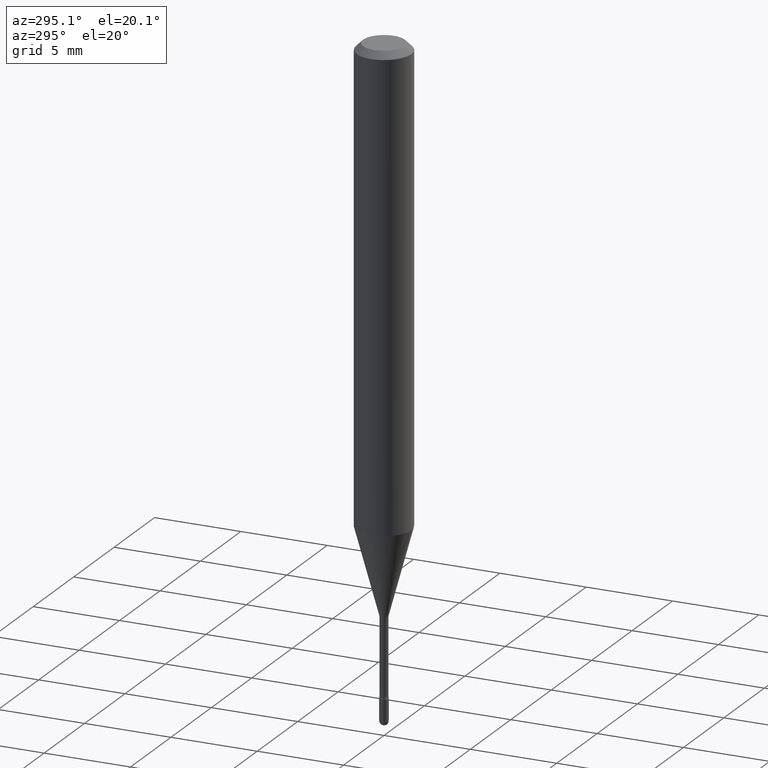
[diagram: clean part render]
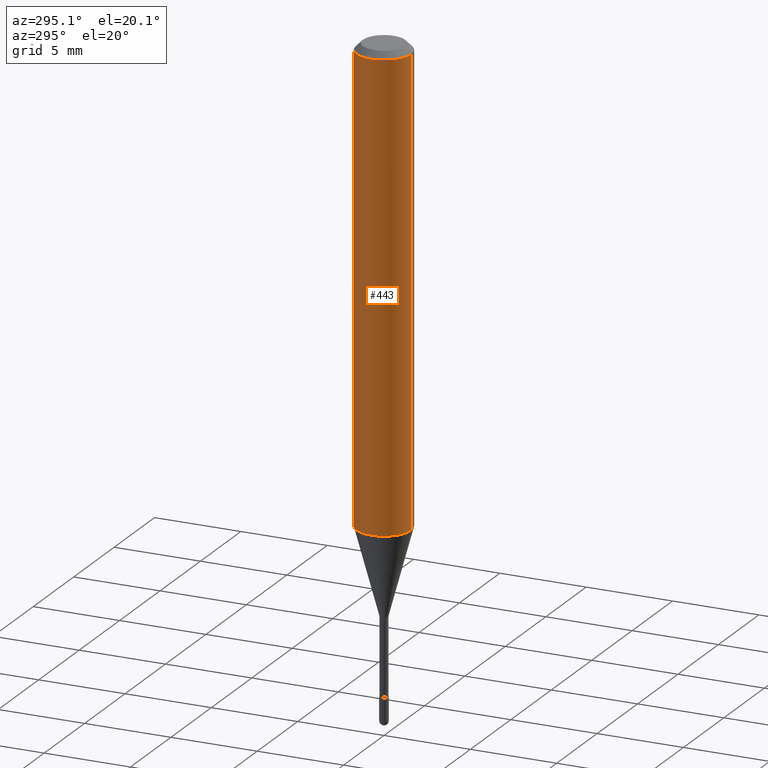
[diagram: same view with one face highlighted and labeled with its STEP entity id]
A machine part, auxiliary view. The second image highlights one B-rep face of the part: STEP entity #443.
In plain terms, the highlighted cylindrical surface (edge-blend (fillet) strip) has radius 1.5875 mm, axis along (-0, 0, 1).
Its self-contained STEP definition (entity closure, byte-faithful):
#2 = CARTESIAN_POINT ( 'NONE',  ( 3.668069088968971079E-31, -5.237414076180536874E-17, -0.01500000000000008271 ) ) ;
#13 = LINE ( 'NONE', #531, #25 ) ;
#25 = VECTOR ( 'NONE', #142, 39.37007874015748143 ) ;
#33 = VECTOR ( 'NONE', #35, 39.37007874015748143 ) ;
#35 = DIRECTION ( 'NONE',  ( -2.445379392645967337E-29, 3.491609384120338901E-15, 1.000000000000000000 ) ) ;
#37 = VERTEX_POINT ( 'NONE', #133 ) ;
#51 = DIRECTION ( 'NONE',  ( -6.982962677686265922E-15, -1.000000000000000000, 4.370956789862821150E-15 ) ) ;
#54 = EDGE_CURVE ( 'NONE', #560, #269, #368, .T. ) ;
#72 = CIRCLE ( 'NONE', #162, 0.06250000000000000000 ) ;
#85 = AXIS2_PLACEMENT_3D ( 'NONE', #378, #479, #51 ) ;
#117 = ORIENTED_EDGE ( 'NONE', *, *, #54, .T. ) ;
#133 = CARTESIAN_POINT ( 'NONE',  ( 4.440892098500887472E-16, 0.06249999999999995837, -0.01500000000000030129 ) ) ;
#139 = VERTEX_POINT ( 'NONE', #431 ) ;
#142 = DIRECTION ( 'NONE',  ( -2.445379392645967337E-29, 3.491609384120338901E-15, 1.000000000000000000 ) ) ;
#162 = AXIS2_PLACEMENT_3D ( 'NONE', #2, #174, #338 ) ;
#174 = DIRECTION ( 'NONE',  ( -2.445379392645967337E-29, 3.491609384120338901E-15, 1.000000000000000000 ) ) ;
#181 = DIRECTION ( 'NONE',  ( -6.982962677686265922E-15, -1.000000000000000000, 3.491609384120340084E-15 ) ) ;
#192 = EDGE_CURVE ( 'NONE', #269, #139, #548, .T. ) ;
#195 = CYLINDRICAL_SURFACE ( 'NONE', #449, 0.06250000000000000000 ) ;
#206 = ORIENTED_EDGE ( 'NONE', *, *, #192, .T. ) ;
#237 = CARTESIAN_POINT ( 'NONE',  ( -1.169113584055446105E-44, 1.669184350826100908E-30, 4.780733988912460139E-16 ) ) ;
#269 = VERTEX_POINT ( 'NONE', #557 ) ;
#297 = EDGE_CURVE ( 'NONE', #37, #139, #72, .T. ) ;
#313 = DIRECTION ( 'NONE',  ( -2.445379392645967337E-29, 3.491609384120338901E-15, 1.000000000000000000 ) ) ;
#321 = EDGE_CURVE ( 'NONE', #560, #37, #13, .T. ) ;
#332 = ORIENTED_EDGE ( 'NONE', *, *, #321, .F. ) ;
#338 = DIRECTION ( 'NONE',  ( -6.982962677686265922E-15, -1.000000000000000000, 3.483106191921935554E-15 ) ) ;
#368 = CIRCLE ( 'NONE', #85, 0.06250000000000000000 ) ;
#372 = EDGE_LOOP ( 'NONE', ( #332, #117, #206, #430 ) ) ;
#378 = CARTESIAN_POINT ( 'NONE',  ( 2.596572559451962557E-29, -3.707488965678223173E-15, -1.061828102118093087 ) ) ;
#399 = FACE_OUTER_BOUND ( 'NONE', #372, .T. ) ;
#415 = CARTESIAN_POINT ( 'NONE',  ( -4.364351673553916201E-16, -0.06250000000000000000, 6.962989853987672938E-16 ) ) ;
#430 = ORIENTED_EDGE ( 'NONE', *, *, #297, .F. ) ;
#431 = CARTESIAN_POINT ( 'NONE',  ( -4.364351673553912750E-16, -0.06250000000000005551, -0.01499999999999986587 ) ) ;
#443 = ADVANCED_FACE ( 'NONE', ( #399 ), #195, .T. ) ;
#449 = AXIS2_PLACEMENT_3D ( 'NONE', #237, #313, #181 ) ;
#479 = DIRECTION ( 'NONE',  ( -2.445379392645967337E-29, 3.491609384120338901E-15, 1.000000000000000000 ) ) ;
#531 = CARTESIAN_POINT ( 'NONE',  ( 4.440892098500625669E-16, 0.06250000000000000000, 2.598478123837248819E-16 ) ) ;
#545 = CARTESIAN_POINT ( 'NONE',  ( 4.440892098500884514E-16, 0.06249999999999629463, -1.061828102118093309 ) ) ;
#548 = LINE ( 'NONE', #415, #33 ) ;
#557 = CARTESIAN_POINT ( 'NONE',  ( -4.364351673553657356E-16, -0.06250000000000371925, -1.061828102118092865 ) ) ;
#560 = VERTEX_POINT ( 'NONE', #545 ) ;